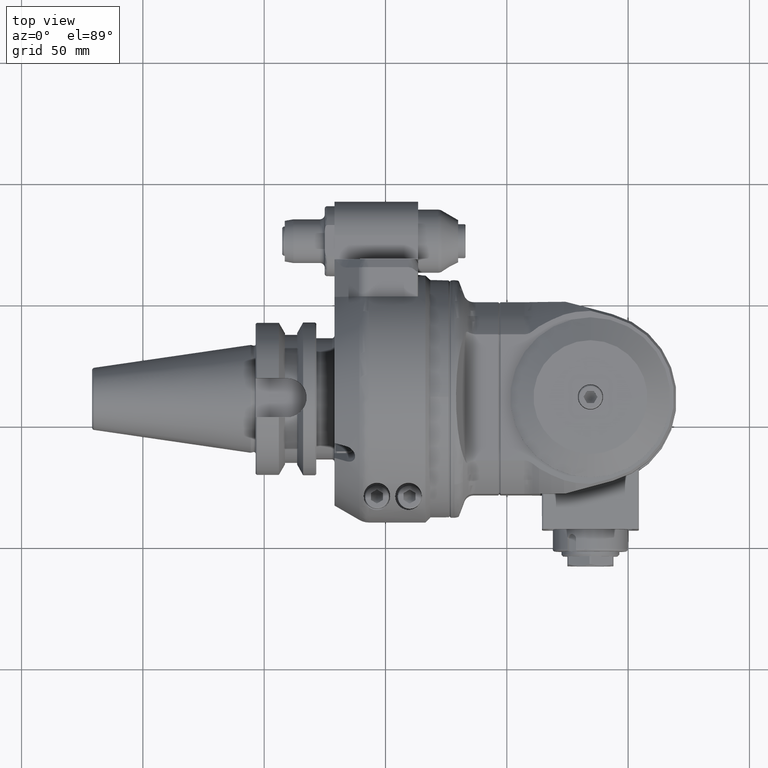
[diagram: clean part render]
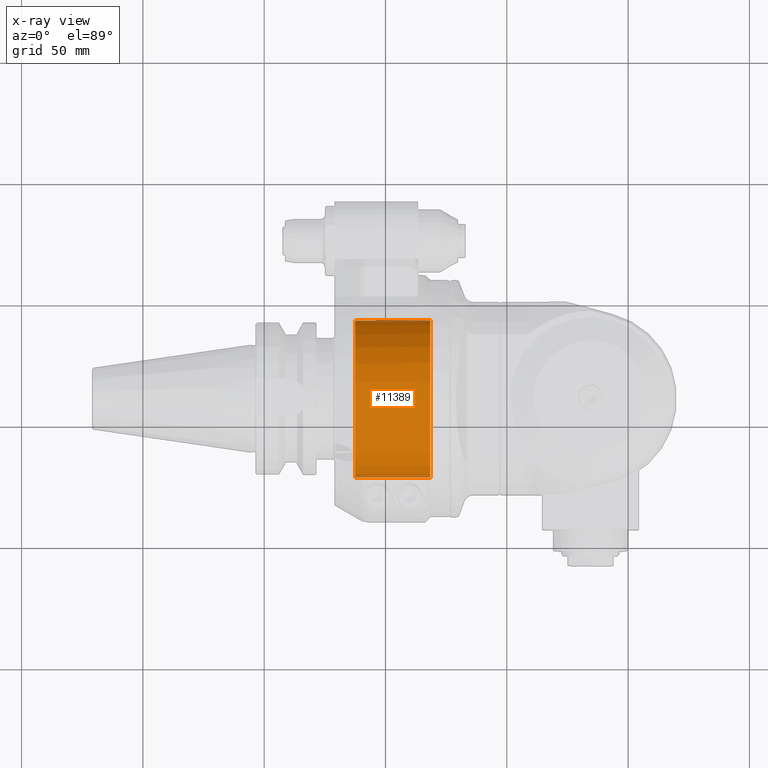
[diagram: x-ray — body ghosted, one internal face saturated and labeled with its STEP entity id]
A machine part, top view, then the same camera in x-ray: the body is ghosted and one INTERNAL B-rep face — a face not visible from any outside direction — is saturated and labeled: STEP entity #11389.
In plain terms, the highlighted cylindrical surface (partial cylindrical patch) has radius 32.5 mm, axis along (1, 0, 0).
Its self-contained STEP definition (entity closure, byte-faithful):
#155=CYLINDRICAL_SURFACE('',#12430,32.5);
#782=CIRCLE('',#12429,32.5);
#783=CIRCLE('',#12431,32.5);
#784=CIRCLE('',#12432,32.5);
#785=CIRCLE('',#12433,32.5);
#1376=FACE_OUTER_BOUND('',#2124,.T.);
#2124=EDGE_LOOP('',(#9099,#9100,#9101,#9102,#9103,#9104,#9105,#9106));
#2921=LINE('',#18925,#3716);
#2926=LINE('',#18963,#3721);
#2927=LINE('',#18967,#3722);
#2928=LINE('',#18970,#3723);
#3716=VECTOR('',#14726,31.);
#3721=VECTOR('',#14743,31.);
#3722=VECTOR('',#14746,8.5);
#3723=VECTOR('',#14749,8.5);
#5073=VERTEX_POINT('',#18922);
#5074=VERTEX_POINT('',#18924);
#5081=VERTEX_POINT('',#18956);
#5082=VERTEX_POINT('',#18960);
#5083=VERTEX_POINT('',#18962);
#5084=VERTEX_POINT('',#18964);
#5085=VERTEX_POINT('',#18966);
#5086=VERTEX_POINT('',#18968);
#6498=EDGE_CURVE('',#5074,#5073,#2921,.T.);
#6507=EDGE_CURVE('',#5081,#5073,#782,.T.);
#6508=EDGE_CURVE('',#5074,#5082,#783,.T.);
#6509=EDGE_CURVE('',#5081,#5083,#2926,.T.);
#6510=EDGE_CURVE('',#5084,#5083,#784,.T.);
#6511=EDGE_CURVE('',#5084,#5085,#2927,.T.);
#6512=EDGE_CURVE('',#5086,#5085,#785,.T.);
#6513=EDGE_CURVE('',#5086,#5082,#2928,.T.);
#9099=ORIENTED_EDGE('',*,*,#6508,.F.);
#9100=ORIENTED_EDGE('',*,*,#6498,.T.);
#9101=ORIENTED_EDGE('',*,*,#6507,.F.);
#9102=ORIENTED_EDGE('',*,*,#6509,.T.);
#9103=ORIENTED_EDGE('',*,*,#6510,.F.);
#9104=ORIENTED_EDGE('',*,*,#6511,.T.);
#9105=ORIENTED_EDGE('',*,*,#6512,.F.);
#9106=ORIENTED_EDGE('',*,*,#6513,.T.);
#11389=ADVANCED_FACE('',(#1376),#155,.F.);
#12429=AXIS2_PLACEMENT_3D('',#18958,#14737,#14738);
#12430=AXIS2_PLACEMENT_3D('',#18959,#14739,#14740);
#12431=AXIS2_PLACEMENT_3D('',#18961,#14741,#14742);
#12432=AXIS2_PLACEMENT_3D('',#18965,#14744,#14745);
#12433=AXIS2_PLACEMENT_3D('',#18969,#14747,#14748);
#14726=DIRECTION('',(1.,0.,0.));
#14737=DIRECTION('center_axis',(-1.,0.,0.));
#14738=DIRECTION('ref_axis',(0.,-0.998934343430642,0.0461538461538519));
#14739=DIRECTION('center_axis',(1.,0.,0.));
#14740=DIRECTION('ref_axis',(0.,1.,-1.22464679914735E-16));
#14741=DIRECTION('center_axis',(1.,0.,0.));
#14742=DIRECTION('ref_axis',(0.,-0.998934343430642,-0.0461538461538519));
#14743=DIRECTION('',(-1.,0.,0.));
#14744=DIRECTION('center_axis',(1.,0.,0.));
#14745=DIRECTION('ref_axis',(0.,0.990367811657303,0.1384615384615));
#14746=DIRECTION('',(1.,0.,0.));
#14747=DIRECTION('center_axis',(1.,0.,0.));
#14748=DIRECTION('ref_axis',(0.,1.,0.));
#14749=DIRECTION('',(-1.,0.,0.));
#18922=CARTESIAN_POINT('',(-12.,-32.4653661615,-1.5));
#18924=CARTESIAN_POINT('',(-43.,-32.4653661615,-1.5));
#18925=CARTESIAN_POINT('',(-43.,-32.4653661615,-1.5));
#18956=CARTESIAN_POINT('',(-12.,-32.4653661615,1.5));
#18958=CARTESIAN_POINT('Origin',(-12.,0.,0.));
#18959=CARTESIAN_POINT('Origin',(-28.5,0.,0.));
#18960=CARTESIAN_POINT('',(-43.,32.18695387886,-4.5));
#18961=CARTESIAN_POINT('Origin',(-43.,0.,0.));
#18962=CARTESIAN_POINT('',(-43.,-32.4653661615,1.5));
#18963=CARTESIAN_POINT('',(-12.,-32.4653661615,1.5));
#18964=CARTESIAN_POINT('',(-43.,32.18695387886,4.5));
#18965=CARTESIAN_POINT('Origin',(-43.,0.,0.));
#18966=CARTESIAN_POINT('',(-34.5,32.18695387886,4.5));
#18967=CARTESIAN_POINT('',(-43.,32.18695387886,4.5));
#18968=CARTESIAN_POINT('',(-34.5,32.18695387886,-4.5));
#18969=CARTESIAN_POINT('Origin',(-34.5,0.,0.));
#18970=CARTESIAN_POINT('',(-34.5,32.18695387886,-4.5));